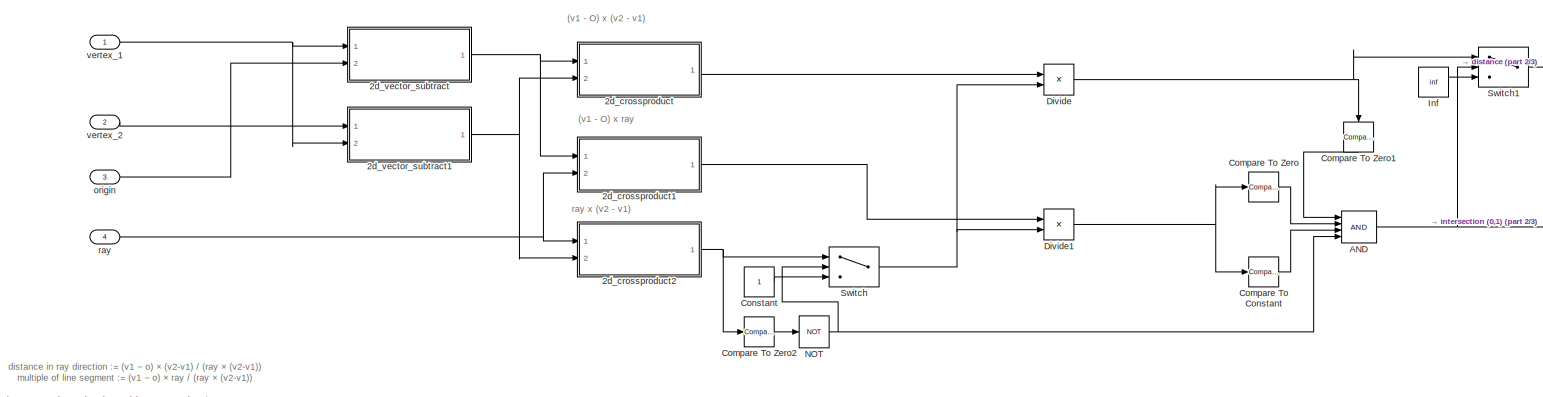
[diagram: root canvas - part 1/3, most of the canvas]
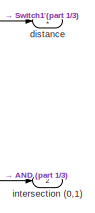
[diagram: root canvas - part 2/3, middle right region]
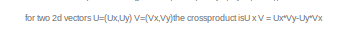
[diagram: root canvas - part 3/3, bottom left region]
MODEL slx_f6dca38a9704
KIND model
CONFIG AbsTol = auto
CONFIG EnableMultiTasking = off
CONFIG FixedStep = auto
CONFIG MaxStep = auto
CONFIG MinStep = auto
CONFIG RelTol = 1e-3
CONFIG SampleTimeConstraint = Unconstrained
CONFIG Solver = VariableStepAuto
CONFIG SolverName = VariableStepAuto
CONFIG StartTime = 0.0
CONFIG StopTime = 10.0
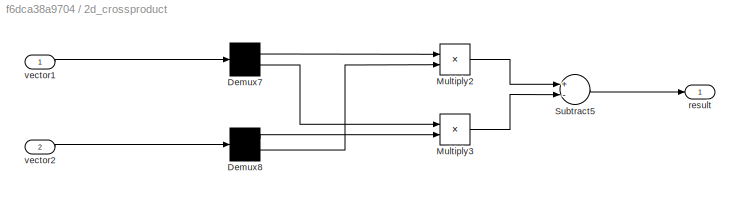
BLOCK [SubSystem] 2d_crossproduct
  Ports = [2, 1]
  RequestExecContextInheritance = off
BLOCK [Demux] 2d_crossproduct/Demux7
  DisplayOption = bar
  Outputs = 2
  Ports = [1, 2]
BLOCK [Demux] 2d_crossproduct/Demux8
  DisplayOption = bar
  Outputs = 2
  Ports = [1, 2]
BLOCK [Product] 2d_crossproduct/Multiply2
  InputSameDT = off
  OutDataTypeStr = Inherit: Inherit via internal rule
  Ports = [2, 1]
  RndMeth = Floor
  SaturateOnIntegerOverflow = off
BLOCK [Product] 2d_crossproduct/Multiply3
  InputSameDT = off
  OutDataTypeStr = Inherit: Inherit via internal rule
  Ports = [2, 1]
  RndMeth = Floor
  SaturateOnIntegerOverflow = off
BLOCK [Sum] 2d_crossproduct/Subtract5
  InputSameDT = off
  Inputs = +-
  OutDataTypeStr = Inherit: Inherit via internal rule
  Ports = [2, 1]
  SaturateOnIntegerOverflow = off
BLOCK [Outport] 2d_crossproduct/result
  IconDisplay = Port number
BLOCK [Inport] 2d_crossproduct/vector1
  IconDisplay = Port number
BLOCK [Inport] 2d_crossproduct/vector2
  IconDisplay = Port number
  Port = 2
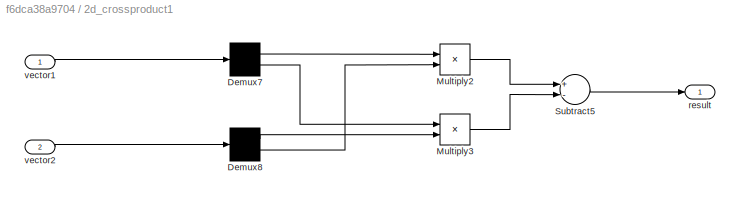
BLOCK [SubSystem] 2d_crossproduct1
  Ports = [2, 1]
  RequestExecContextInheritance = off
BLOCK [Demux] 2d_crossproduct1/Demux7
  DisplayOption = bar
  Outputs = 2
  Ports = [1, 2]
BLOCK [Demux] 2d_crossproduct1/Demux8
  DisplayOption = bar
  Outputs = 2
  Ports = [1, 2]
BLOCK [Product] 2d_crossproduct1/Multiply2
  InputSameDT = off
  OutDataTypeStr = Inherit: Inherit via internal rule
  Ports = [2, 1]
  RndMeth = Floor
  SaturateOnIntegerOverflow = off
BLOCK [Product] 2d_crossproduct1/Multiply3
  InputSameDT = off
  OutDataTypeStr = Inherit: Inherit via internal rule
  Ports = [2, 1]
  RndMeth = Floor
  SaturateOnIntegerOverflow = off
BLOCK [Sum] 2d_crossproduct1/Subtract5
  InputSameDT = off
  Inputs = +-
  OutDataTypeStr = Inherit: Inherit via internal rule
  Ports = [2, 1]
  SaturateOnIntegerOverflow = off
BLOCK [Outport] 2d_crossproduct1/result
  IconDisplay = Port number
BLOCK [Inport] 2d_crossproduct1/vector1
  IconDisplay = Port number
BLOCK [Inport] 2d_crossproduct1/vector2
  IconDisplay = Port number
  Port = 2
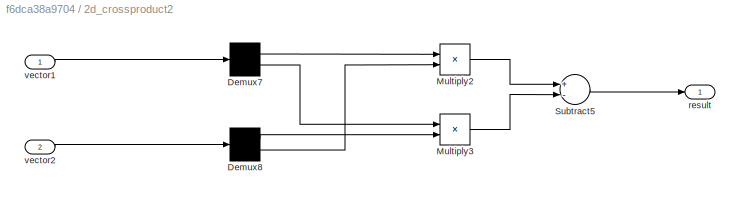
BLOCK [SubSystem] 2d_crossproduct2
  Ports = [2, 1]
  RequestExecContextInheritance = off
BLOCK [Demux] 2d_crossproduct2/Demux7
  DisplayOption = bar
  Outputs = 2
  Ports = [1, 2]
BLOCK [Demux] 2d_crossproduct2/Demux8
  DisplayOption = bar
  Outputs = 2
  Ports = [1, 2]
BLOCK [Product] 2d_crossproduct2/Multiply2
  InputSameDT = off
  OutDataTypeStr = Inherit: Inherit via internal rule
  Ports = [2, 1]
  RndMeth = Floor
  SaturateOnIntegerOverflow = off
BLOCK [Product] 2d_crossproduct2/Multiply3
  InputSameDT = off
  OutDataTypeStr = Inherit: Inherit via internal rule
  Ports = [2, 1]
  RndMeth = Floor
  SaturateOnIntegerOverflow = off
BLOCK [Sum] 2d_crossproduct2/Subtract5
  InputSameDT = off
  Inputs = +-
  OutDataTypeStr = Inherit: Inherit via internal rule
  Ports = [2, 1]
  SaturateOnIntegerOverflow = off
BLOCK [Outport] 2d_crossproduct2/result
  IconDisplay = Port number
BLOCK [Inport] 2d_crossproduct2/vector1
  IconDisplay = Port number
BLOCK [Inport] 2d_crossproduct2/vector2
  IconDisplay = Port number
  Port = 2
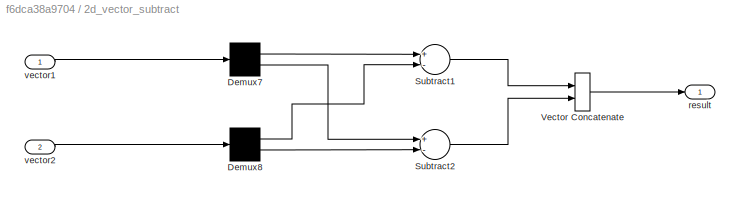
BLOCK [SubSystem] 2d_vector_subtract
  Ports = [2, 1]
  RequestExecContextInheritance = off
BLOCK [Demux] 2d_vector_subtract/Demux7
  DisplayOption = bar
  Outputs = 2
  Ports = [1, 2]
BLOCK [Demux] 2d_vector_subtract/Demux8
  DisplayOption = bar
  Outputs = 2
  Ports = [1, 2]
BLOCK [Sum] 2d_vector_subtract/Subtract1
  InputSameDT = off
  Inputs = +-
  OutDataTypeStr = Inherit: Inherit via internal rule
  Ports = [2, 1]
  SaturateOnIntegerOverflow = off
BLOCK [Sum] 2d_vector_subtract/Subtract2
  InputSameDT = off
  Inputs = +-
  OutDataTypeStr = Inherit: Inherit via internal rule
  Ports = [2, 1]
  SaturateOnIntegerOverflow = off
BLOCK [Concatenate] 2d_vector_subtract/Vector Concatenate
  Ports = [2, 1]
BLOCK [Outport] 2d_vector_subtract/result
  IconDisplay = Port number
BLOCK [Inport] 2d_vector_subtract/vector1
  IconDisplay = Port number
BLOCK [Inport] 2d_vector_subtract/vector2
  IconDisplay = Port number
  Port = 2
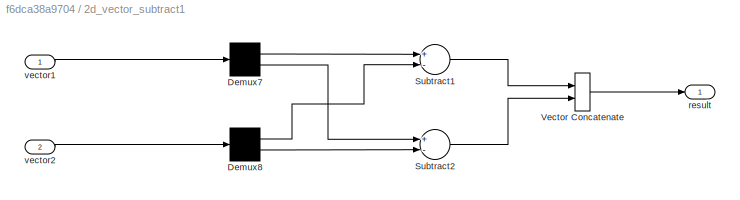
BLOCK [SubSystem] 2d_vector_subtract1
  Ports = [2, 1]
  RequestExecContextInheritance = off
BLOCK [Demux] 2d_vector_subtract1/Demux7
  DisplayOption = bar
  Outputs = 2
  Ports = [1, 2]
BLOCK [Demux] 2d_vector_subtract1/Demux8
  DisplayOption = bar
  Outputs = 2
  Ports = [1, 2]
BLOCK [Sum] 2d_vector_subtract1/Subtract1
  InputSameDT = off
  Inputs = +-
  OutDataTypeStr = Inherit: Inherit via internal rule
  Ports = [2, 1]
  SaturateOnIntegerOverflow = off
BLOCK [Sum] 2d_vector_subtract1/Subtract2
  InputSameDT = off
  Inputs = +-
  OutDataTypeStr = Inherit: Inherit via internal rule
  Ports = [2, 1]
  SaturateOnIntegerOverflow = off
BLOCK [Concatenate] 2d_vector_subtract1/Vector Concatenate
  Ports = [2, 1]
BLOCK [Outport] 2d_vector_subtract1/result
  IconDisplay = Port number
BLOCK [Inport] 2d_vector_subtract1/vector1
  IconDisplay = Port number
BLOCK [Inport] 2d_vector_subtract1/vector2
  IconDisplay = Port number
  Port = 2
BLOCK [Logic] AND
  AllPortsSameDT = off
  IconShape = distinctive
  Inputs = 4
  OutDataTypeStr = boolean
  Ports = [4, 1]
BLOCK [Reference] Compare To Constant  REF=simulink/Logic and Bit
Operations/Compare
To Constant
  Ports = [1, 1]
  SourceBlock = simulink/Logic and Bit\nOperations/Compare\nTo Constant
  SourceProductBaseCode = SL
  SourceProductName = Simulink
  SourceType = Compare To Constant
BLOCK [Reference] Compare To Zero  REF=simulink/Logic and Bit
Operations/Compare
To Zero
  Ports = [1, 1]
  SourceBlock = simulink/Logic and Bit\nOperations/Compare\nTo Zero
  SourceProductBaseCode = SL
  SourceProductName = Simulink
  SourceType = Compare To Zero
BLOCK [Reference] Compare To Zero1  REF=simulink/Logic and Bit
Operations/Compare
To Zero
  Ports = [1, 1]
  SourceBlock = simulink/Logic and Bit\nOperations/Compare\nTo Zero
  SourceProductBaseCode = SL
  SourceProductName = Simulink
  SourceType = Compare To Zero
BLOCK [Reference] Compare To Zero2  REF=simulink/Logic and Bit
Operations/Compare
To Zero
  Ports = [1, 1]
  SourceBlock = simulink/Logic and Bit\nOperations/Compare\nTo Zero
  SourceProductBaseCode = SL
  SourceProductName = Simulink
  SourceType = Compare To Zero
BLOCK [Constant] Constant
BLOCK [Product] Divide
  InputSameDT = off
  Inputs = */
  OutDataTypeStr = Inherit: Inherit via internal rule
  Ports = [2, 1]
  RndMeth = Floor
  SaturateOnIntegerOverflow = off
BLOCK [Product] Divide1
  InputSameDT = off
  Inputs = */
  OutDataTypeStr = Inherit: Inherit via internal rule
  Ports = [2, 1]
  RndMeth = Floor
  SaturateOnIntegerOverflow = off
BLOCK [Constant] Inf
  Value = inf
BLOCK [Logic] NOT
  AllPortsSameDT = off
  IconShape = distinctive
  Operator = NOT
  OutDataTypeStr = boolean
  Ports = [1, 1]
BLOCK [Switch] Switch
  Criteria = u2 > Threshold
  InputSameDT = off
  SaturateOnIntegerOverflow = off
  ZeroCross = off
BLOCK [Switch] Switch1
  Criteria = u2 > Threshold
  InputSameDT = off
  SaturateOnIntegerOverflow = off
  ZeroCross = off
BLOCK [Outport] distance
  IconDisplay = Port number
BLOCK [Outport] intersection (0,1)
  IconDisplay = Port number
  Port = 2
BLOCK [Inport] origin 
  IconDisplay = Port number
  Port = 3
BLOCK [Inport] ray
  IconDisplay = Port number
  Port = 4
BLOCK [Inport] vertex_1
  IconDisplay = Port number
BLOCK [Inport] vertex_2
  IconDisplay = Port number
  Port = 2
ANNOTATION (root): distance in ray direction := (v1 − o) × (v2-v1) / (ray × (v2-v1)) multiple of line segment := (v1 − o) × ray / (ray × (v2-v1)) for two 2d vectors U=(Ux,Uy) V=(Vx,Vy)the crossproduct isU x V = Ux*Vy-Uy*Vx
ANNOTATION (root): (v1 - O) x (v2 - v1)
ANNOTATION (root): (v1 - O) x ray
ANNOTATION (root): ray x (v2 - v1)
LINE 2d_crossproduct/Demux7:1 -> 2d_crossproduct/Multiply2:1
LINE 2d_crossproduct/Demux7:2 -> 2d_crossproduct/Multiply3:1
LINE 2d_crossproduct/Demux8:1 -> 2d_crossproduct/Multiply3:2
LINE 2d_crossproduct/Demux8:2 -> 2d_crossproduct/Multiply2:2
LINE 2d_crossproduct/Multiply2:1 -> 2d_crossproduct/Subtract5:1
LINE 2d_crossproduct/Multiply3:1 -> 2d_crossproduct/Subtract5:2
LINE 2d_crossproduct/Subtract5:1 -> 2d_crossproduct/result:1
LINE 2d_crossproduct/vector1:1 -> 2d_crossproduct/Demux7:1
LINE 2d_crossproduct/vector2:1 -> 2d_crossproduct/Demux8:1
LINE 2d_crossproduct1/Demux7:1 -> 2d_crossproduct1/Multiply2:1
LINE 2d_crossproduct1/Demux7:2 -> 2d_crossproduct1/Multiply3:1
LINE 2d_crossproduct1/Demux8:1 -> 2d_crossproduct1/Multiply3:2
LINE 2d_crossproduct1/Demux8:2 -> 2d_crossproduct1/Multiply2:2
LINE 2d_crossproduct1/Multiply2:1 -> 2d_crossproduct1/Subtract5:1
LINE 2d_crossproduct1/Multiply3:1 -> 2d_crossproduct1/Subtract5:2
LINE 2d_crossproduct1/Subtract5:1 -> 2d_crossproduct1/result:1
LINE 2d_crossproduct1/vector1:1 -> 2d_crossproduct1/Demux7:1
LINE 2d_crossproduct1/vector2:1 -> 2d_crossproduct1/Demux8:1
LINE 2d_crossproduct1:1 -> Divide1:1
LINE 2d_crossproduct2/Demux7:1 -> 2d_crossproduct2/Multiply2:1
LINE 2d_crossproduct2/Demux7:2 -> 2d_crossproduct2/Multiply3:1
LINE 2d_crossproduct2/Demux8:1 -> 2d_crossproduct2/Multiply3:2
LINE 2d_crossproduct2/Demux8:2 -> 2d_crossproduct2/Multiply2:2
LINE 2d_crossproduct2/Multiply2:1 -> 2d_crossproduct2/Subtract5:1
LINE 2d_crossproduct2/Multiply3:1 -> 2d_crossproduct2/Subtract5:2
LINE 2d_crossproduct2/Subtract5:1 -> 2d_crossproduct2/result:1
LINE 2d_crossproduct2/vector1:1 -> 2d_crossproduct2/Demux7:1
LINE 2d_crossproduct2/vector2:1 -> 2d_crossproduct2/Demux8:1
NET 2d_crossproduct2:1 -> Compare To Zero2:1, Switch:1
LINE 2d_crossproduct:1 -> Divide:1
LINE 2d_vector_subtract/Demux7:1 -> 2d_vector_subtract/Subtract1:1
LINE 2d_vector_subtract/Demux7:2 -> 2d_vector_subtract/Subtract2:1
LINE 2d_vector_subtract/Demux8:1 -> 2d_vector_subtract/Subtract1:2
LINE 2d_vector_subtract/Demux8:2 -> 2d_vector_subtract/Subtract2:2
LINE 2d_vector_subtract/Subtract1:1 -> 2d_vector_subtract/Vector Concatenate:1
LINE 2d_vector_subtract/Subtract2:1 -> 2d_vector_subtract/Vector Concatenate:2
LINE 2d_vector_subtract/Vector Concatenate:1 -> 2d_vector_subtract/result:1
LINE 2d_vector_subtract/vector1:1 -> 2d_vector_subtract/Demux7:1
LINE 2d_vector_subtract/vector2:1 -> 2d_vector_subtract/Demux8:1
LINE 2d_vector_subtract1/Demux7:1 -> 2d_vector_subtract1/Subtract1:1
LINE 2d_vector_subtract1/Demux7:2 -> 2d_vector_subtract1/Subtract2:1
LINE 2d_vector_subtract1/Demux8:1 -> 2d_vector_subtract1/Subtract1:2
LINE 2d_vector_subtract1/Demux8:2 -> 2d_vector_subtract1/Subtract2:2
LINE 2d_vector_subtract1/Subtract1:1 -> 2d_vector_subtract1/Vector Concatenate:1
LINE 2d_vector_subtract1/Subtract2:1 -> 2d_vector_subtract1/Vector Concatenate:2
LINE 2d_vector_subtract1/Vector Concatenate:1 -> 2d_vector_subtract1/result:1
LINE 2d_vector_subtract1/vector1:1 -> 2d_vector_subtract1/Demux7:1
LINE 2d_vector_subtract1/vector2:1 -> 2d_vector_subtract1/Demux8:1
NET 2d_vector_subtract1:1 -> 2d_crossproduct2:2, 2d_crossproduct:2
NET 2d_vector_subtract:1 -> 2d_crossproduct1:1, 2d_crossproduct:1
NET AND:1 -> Switch1:2, intersection (0,1):1
LINE Compare To Constant:1 -> AND:3
LINE Compare To Zero1:1 -> AND:1
LINE Compare To Zero2:1 -> NOT:1
LINE Compare To Zero:1 -> AND:2
LINE Constant:1 -> Switch:3
NET Divide1:1 -> Compare To Constant:1, Compare To Zero:1
NET Divide:1 -> Compare To Zero1:1, Switch1:1
LINE Inf:1 -> Switch1:3
NET NOT:1 -> AND:4, Switch:2
LINE Switch1:1 -> distance:1
NET Switch:1 -> Divide1:2, Divide:2
LINE origin :1 -> 2d_vector_subtract:2
NET ray:1 -> 2d_crossproduct1:2, 2d_crossproduct2:1
NET vertex_1:1 -> 2d_vector_subtract1:2, 2d_vector_subtract:1
LINE vertex_2:1 -> 2d_vector_subtract1:1
note: NET lines group one-source signal fan-out (src -> all destinations, sorted); 1:1 wires keep LINE
